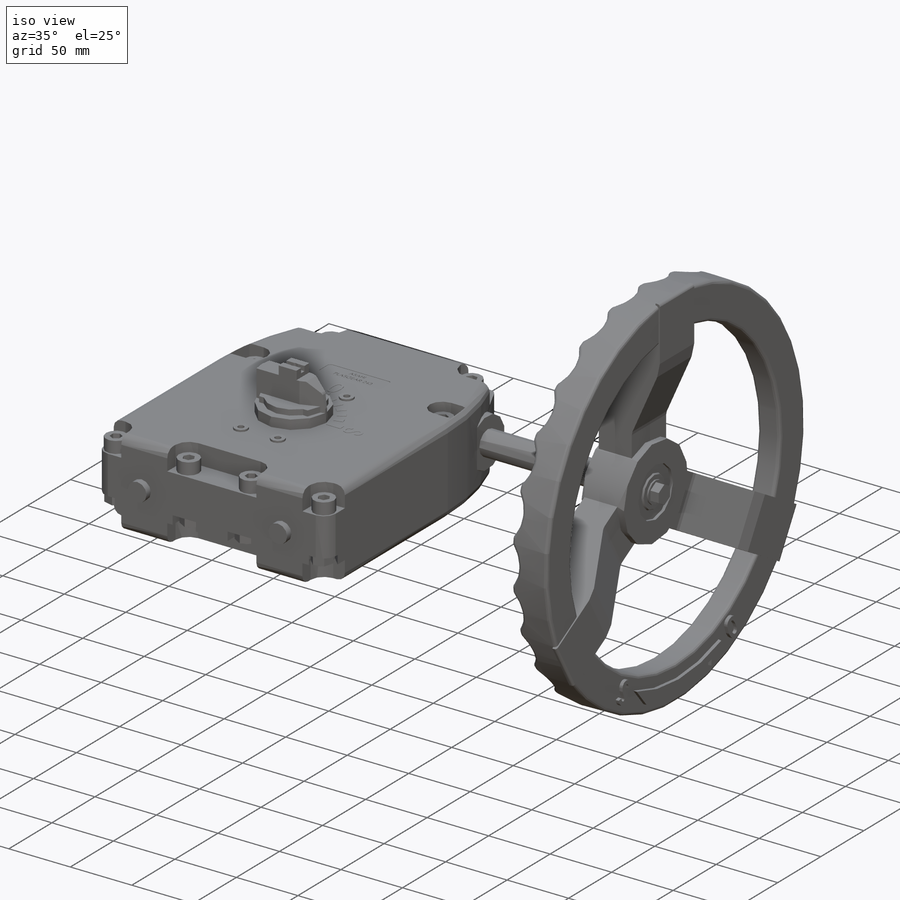
[diagram: iso view]
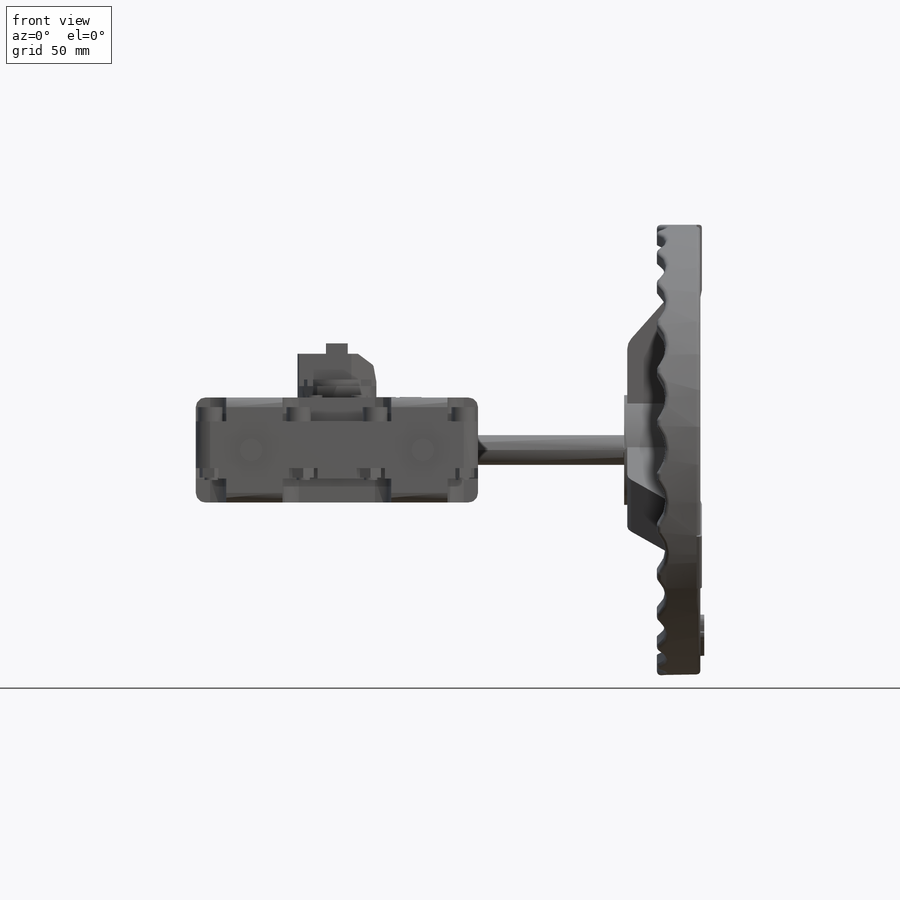
[diagram: front view]
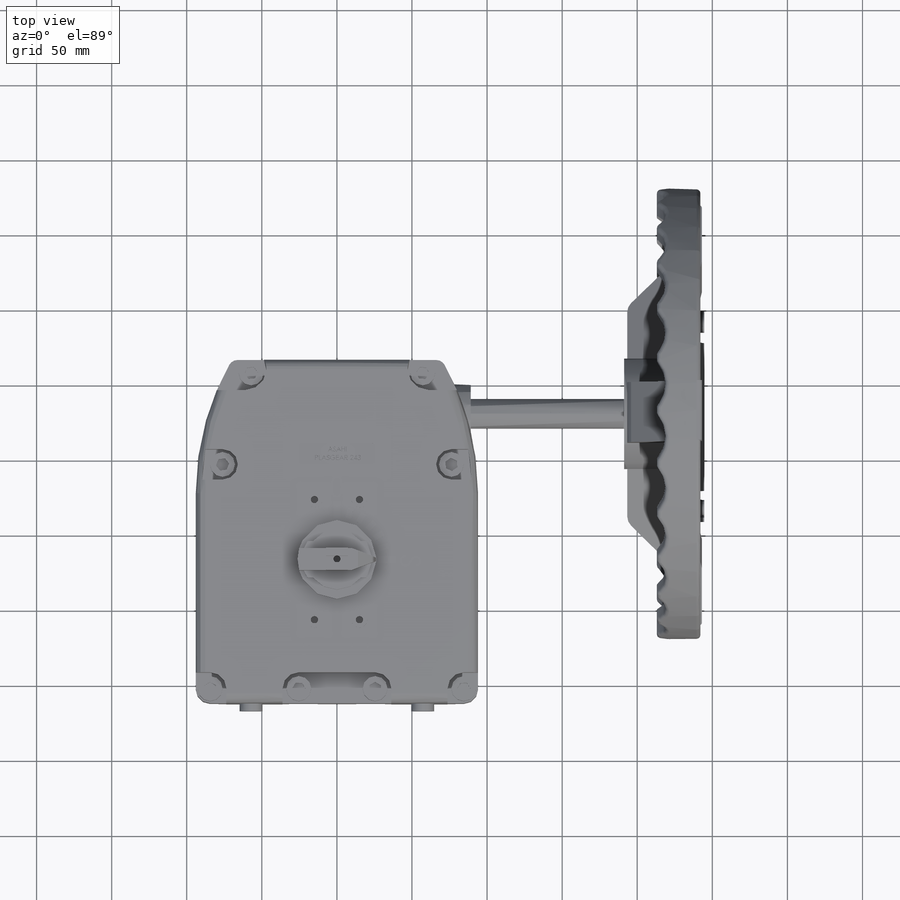
[diagram: top view]
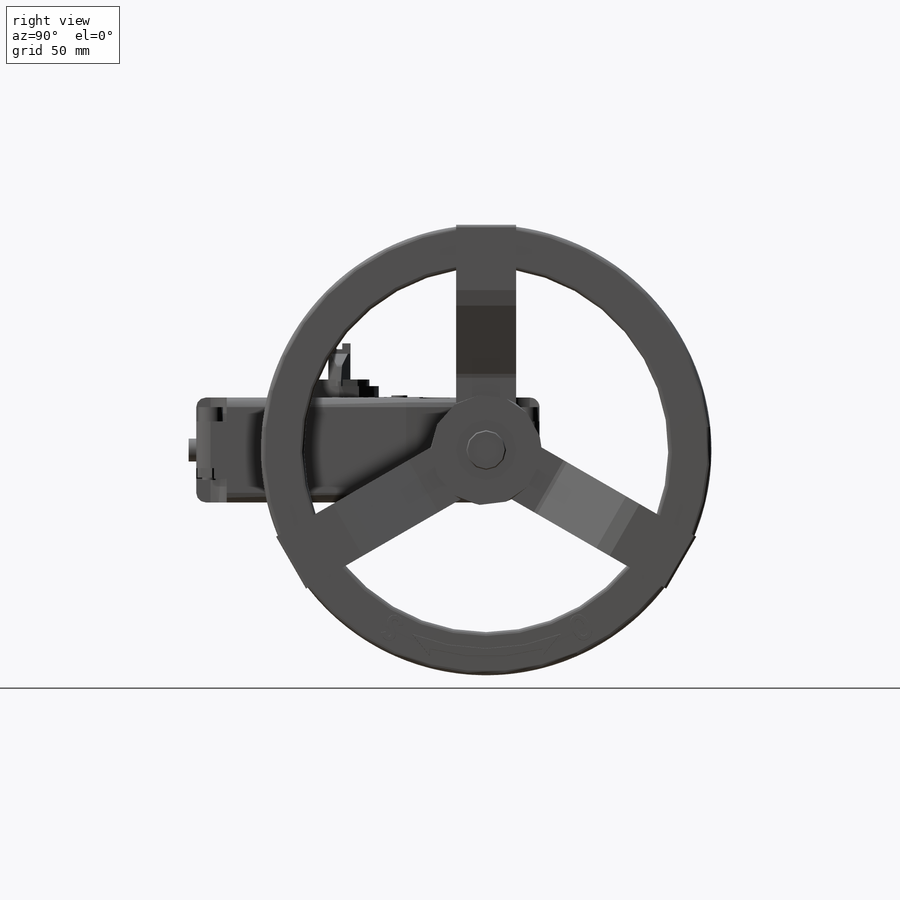
[diagram: right view]
SOLIDWORKS PART (.sldprt)
format: sldprt  version: not decoded by parser v0  size: 23,871,488 bytes
history: native  units: mm
features: sketch x45, extrude x25, cut_extrude x20, plane x7, mirror x2, fillet x2, pattern_circular x2, material x1, chamfer x1 (+13 scaffold rows collapsed)
feature tree (118):
  scaffold x13  (default folders/planes/origin — collapsed)
  material  "Material <not specified>"
  sketch  "Sketch1"  dims[c1.D3=9.525mm c1.D7=6.35mm c1.D8=~175.828158mm c1.D1=184.15mm c1.D2=228.6mm c2.D1=228.6mm c2.D2=187.96mm c2.D4=114.3mm c2.D5=139.7mm c2.D6=139.7mm]
  extrude  "Extrude1"  Depth=69.85mm
  sketch  "Sketch2"  dims[c1.D4=13.97mm c1.D5=10.16mm c1.D1=20.32mm c1.D2=20.32mm c1.D3=60.96mm c2.D4=44.45mm c2.D6=76.2mm]
  cut_extrude  "Cut-Extrude1"  Depth=15.875mm
  mirror  "Mirror1"
  sketch  "Sketch3"  dims[D2=10.795mm D1=72.39mm]
  cut_extrude  "Cut-Extrude2"  Depth=15.875mm
  mirror  "Mirror2"
  sketch  "Sketch5"  dims[c1.D1=~22.380985mm c1.D2=105.791mm c1.D3=19.05mm c1.D4=~14.661336mm c2.D4=~178.773344deg c3.D4=19.05mm c3.D5=~10.998523mm c4.D5=45.0deg c4.D6=83.82mm c4.D7=19.05mm c4.D8=44.45mm c4.D9=79.375mm c4.D10=19.05mm c4.D11=105.41mm c4.D12=60.96mm]
  cut_extrude  "Cut-Extrude3"  Depth=6.985mm
  sketch  "Sketch6"  dims[c1.D1=48.26mm c1.D2=~45.95374mm c2.D1=48.26mm c2.D3=48.26mm c2.D2=95.25mm c3.D3=0.635mm c3.D2=95.25mm]
  cut_extrude  "Cut-Extrude4"  Depth=2.54mm
  sketch  "Sketch7"  dims[D1=2.54mm D2=28.575mm]
  cut_extrude  "Cut-Extrude5"  Depth=45.72mm
  sketch  "Sketch8"  dims[c1.D1=18.415mm c1.D2=18.415mm c1.D3=18.415mm c2.D2=101.6mm c2.D3=101.6mm c2.D1=101.6mm c3.D2=101.6mm c3.D4=50.8mm]
  cut_extrude  "Cut-Extrude6"  Depth=13.9192mm
  fillet  "Fillet1"  Radius=6.35mm
  sketch  "Sketch11"  dims[D3=12.7mm D1=43.18mm D2=3.175mm]
  cut_extrude  "Cut-Extrude7"  [1 undecoded]
  sketch  "Sketch9"  dims[c1.D1=13.97mm c1.D2=0.635mm c1.D3=0.635mm c2.D2=~22.380985mm c2.D3=105.791mm c2.D4=13.97mm c2.D5=13.97mm c2.D6=2.54mm c2.D7=2.54mm c2.D8=13.97mm c2.D9=2.54mm c2.D10=2.54mm]
  extrude  "Extrude2"  Depth=6.35mm
  sketch  "Sketch12"  dims[D1=9.144mm]
  extrude  "Extrude3"  Depth=1.524mm
  sketch  "Sketch13"  dims[D1=16.51mm D2=16.51mm]
  extrude  "Extrude4"  Depth=9.525mm
  sketch  "Sketch14"  dims[D1=7.62mm D2=7.62mm D3=7.62mm D4=7.62mm D5=7.62mm D6=7.62mm D7=7.62mm]
  cut_extrude  "Cut-Extrude8"  Depth=6.35mm
  sketch  "Sketch15"  dims[D1=52.4891mm]
  extrude  "Extrude5"  Depth=7.62mm
  sketch  "Sketch16"  dims[D1=40.1066mm D2=24.3586mm]
  extrude  "Extrude6"  Depth=4.445mm
  sketch  "Sketch17"  dims[c1.D1=39.37mm c1.D3=39.37mm c2.D1=78.74mm c2.D7=1.27mm c2.D2=4.572mm c2.D3=4.572mm c2.D4=41.91mm c2.D5=9.525mm c2.D6=7.62mm c3.D2=39.37mm]
  extrude  "Extrude7"  Depth=0.254mm
  sketch  "Sketch18"  dims[D1=10.6045mm D2=29.972mm D3=80.01mm]
  extrude  "Extrude8"  Depth=1.4732mm
  sketch  "Sketch19"  dims[D1=4.9022mm]
  cut_extrude  "Cut-Extrude9"  Depth=12.7mm
  sketch  "Sketch20"  dims[c1.D1=~27.54213mm c2.D1=45.0deg c2.D2=~42.839999mm c3.D2=15.0deg c3.D3=~49.546838mm c4.D3=15.0deg c4.D4=3.81mm c4.D5=3.81mm c4.D6=3.81mm]
  extrude  "Extrude9"  Depth=0.254mm
  sketch  "Sketch23"
  extrude  "Extrude10"  Depth=0.254mm
  sketch  "Sketch27"
  extrude  "Extrude11"  Depth=0.254mm
  sketch  "Sketch28"  dims[D3=2.54mm D1=13.97mm D2=50.8mm]
  cut_extrude  "Cut-Extrude10"  Depth=0.254mm
  sketch  "Sketch29"  dims[D1=14.732mm]
  extrude  "Extrude12"  Depth=21.5392mm
  sketch  "Sketch30"  dims[D1=2.54mm]
  cut_extrude  "Cut-Extrude11"  [1 undecoded]
  sketch  "Sketch31"  dims[D2=0.254mm D1=14.5034mm]
  extrude  "Extrude13"  Depth=6.9088mm
  sketch  "Sketch32"  dims[D1=3.9243mm]
  cut_extrude  "Cut-Extrude12"  Depth=3.8608mm
  sketch  "Sketch33"  dims[D1=4.7752mm]
  cut_extrude  "Cut-Extrude13"  Depth=25.4mm
  plane  "Plane1"  Offset=89.154mm
  sketch  "Sketch34"  dims[D2=39.5224mm D1=35.56mm]
  extrude  "Extrude14"  Depth=2.54mm
  plane  "Plane2"  Offset=215.9mm
  sketch  "Sketch35"  dims[D1=19.8374mm]
  extrude  "Extrude15"  [1 undecoded]
  sketch  "Sketch36"  dims[c1.D4=19.8374mm c1.D1=~9.609281mm c2.D1=45.0deg c2.D2=~14.225652mm c3.D2=~140.057726deg c4.D2=~14.225652mm c5.D2=45.0deg c5.D3=15.9766mm]
  cut_extrude  "Cut-Extrude14"  Depth=25.019mm
  sketch  "Sketch37"  dims[D1=6.8326mm]
  cut_extrude  "Cut-Extrude15"  Depth=25.4mm
  chamfer  "Chamfer1"  Distance=0.762mm Angle=45deg
  sketch  "Sketch38"  dims[D1=15.24mm D2=57.15mm]
  extrude  "Extrude16"  Depth=5.08mm
  sketch  "Sketch39"  dims[D1=6.35mm]
  cut_extrude  "Cut-Extrude16"  Depth=0.0254mm
  plane  "Plane3"  Offset=242.062mm
  sketch  "Sketch40"  dims[D1=299.974mm D2=28.7274mm]
  extrude  "Extrude17"  Depth=2.54mm
  sketch  "Sketch41"  dims[D1=9.2202mm]
  extrude  "Extrude18"  Depth=26.416mm
  plane  "Plane4"  Offset=233.68mm
  sketch  "Sketch42"  dims[D1=3.556mm D2=3.556mm]
  cut_extrude  "Cut-Extrude17"  Depth=26.416mm
  pattern_circular  "CirPattern1"  Count=26 Angle=360deg
  sketch  "Sketch43"  dims[D1=10.668mm]
  extrude  "Extrude19"  Depth=15.7226mm
  plane  "Plane5"  Offset=50.8mm
  sketch  "Sketch44"  dims[D1=28.575mm]
  extrude  "Extrude20"  Depth=34.3662mm
  sketch  "Sketch45"  dims[D1=36.83mm D2=1.778mm D3=1.778mm D4=0.635mm]
  cut_extrude  "Cut-Extrude18"  Depth=0.254mm
  fillet  "Fillet2"  Radius=2.54mm
  sketch  "Sketch46"  dims[D1=40.386mm]
  cut_extrude  "Cut-Extrude19"  Depth=2.286mm
  sketch  "Sketch47"  dims[D1=26.416mm]
  extrude  "Extrude21"  Depth=1.27mm
  sketch  "Sketch48"  dims[D1=13.0302mm]
  extrude  "Extrude22"  Depth=8.128mm
  sketch  "Sketch49"  dims[D1=17.78mm]
  extrude  "Extrude23"  Depth=1.27mm
  plane  "Plane6"
  plane  "Plane7"
  sketch  "Sketch50"  dims[D1=1.778mm D2=1.778mm D3=25.4mm D4=6.35mm D5=10.16mm]
  extrude  "Extrude24"  Depth=39.9034mm
  pattern_circular  "CirPattern2"  Count=3 Angle=360deg
  sketch  "Sketch51"
  extrude  "Extrude25"  Depth=2.54mm
  sketch  "Sketch52"
  cut_extrude  "Cut-Extrude20"  Depth=2.54mm
decode coverage: 88 of 97 modeling features carry decoded parameters
note: ~ marks probable driven/reference dimensions
note: 3 parameter values undecoded
summary: no parameter record found for 3 features
note: suppression state not decoded; provenance and decode notes live in map.json
